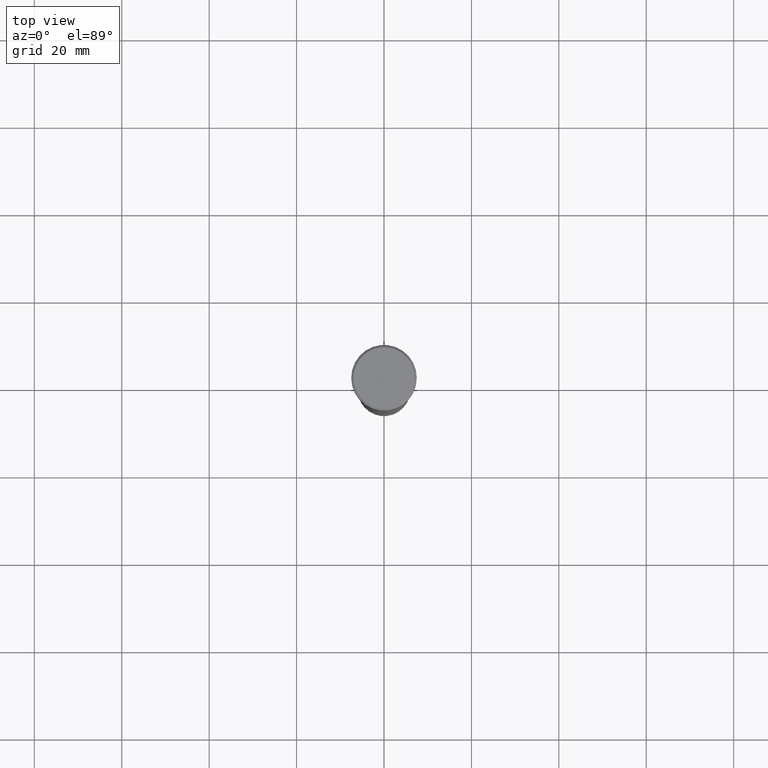
[diagram: clean part render]
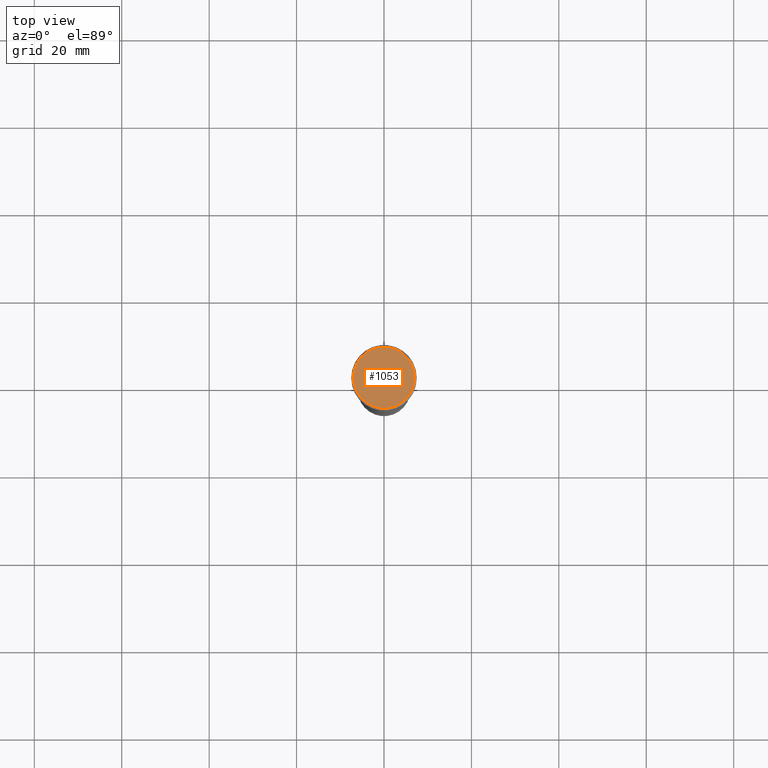
[diagram: same view with one face highlighted and labeled with its STEP entity id]
A machine part, top view. The second image highlights one B-rep face of the part: STEP entity #1053.
In plain terms, the highlighted planar face has unit normal (0, -0, 1).
Its self-contained STEP definition (entity closure, byte-faithful):
#103 = CARTESIAN_POINT ( 'NONE',  ( 0.000000000000000000, 0.000000000000000000, 0.000000000000000000 ) ) ;
#187 = DIRECTION ( 'NONE',  ( 0.000000000000000000, -0.000000000000000000, 1.000000000000000000 ) ) ;
#194 = CIRCLE ( 'NONE', #1124, 7.000000000000005329 ) ;
#264 = CIRCLE ( 'NONE', #532, 7.000000000000005329 ) ;
#459 = CARTESIAN_POINT ( 'NONE',  ( 0.000000000000000000, 0.000000000000000000, 0.000000000000000000 ) ) ;
#460 = DIRECTION ( 'NONE',  ( 1.000000000000000000, 0.000000000000000000, 0.000000000000000000 ) ) ;
#496 = EDGE_LOOP ( 'NONE', ( #979, #1050 ) ) ;
#501 = DIRECTION ( 'NONE',  ( -0.000000000000000000, -0.000000000000000000, 1.000000000000000000 ) ) ;
#502 = AXIS2_PLACEMENT_3D ( 'NONE', #459, #187, #533 ) ;
#510 = VERTEX_POINT ( 'NONE', #517 ) ;
#517 = CARTESIAN_POINT ( 'NONE',  ( 7.000000000000005329, 8.878689293818314018E-16, 0.000000000000000000 ) ) ;
#532 = AXIS2_PLACEMENT_3D ( 'NONE', #770, #501, #661 ) ;
#533 = DIRECTION ( 'NONE',  ( 1.000000000000000000, 0.000000000000000000, 0.000000000000000000 ) ) ;
#661 = DIRECTION ( 'NONE',  ( 1.000000000000000000, 0.000000000000000000, 0.000000000000000000 ) ) ;
#688 = EDGE_CURVE ( 'NONE', #510, #883, #264, .T. ) ;
#770 = CARTESIAN_POINT ( 'NONE',  ( 0.000000000000000000, 0.000000000000000000, 0.000000000000000000 ) ) ;
#785 = FACE_OUTER_BOUND ( 'NONE', #496, .T. ) ;
#883 = VERTEX_POINT ( 'NONE', #1095 ) ;
#934 = EDGE_CURVE ( 'NONE', #883, #510, #194, .T. ) ;
#979 = ORIENTED_EDGE ( 'NONE', *, *, #934, .T. ) ;
#1050 = ORIENTED_EDGE ( 'NONE', *, *, #688, .T. ) ;
#1053 = ADVANCED_FACE ( 'NONE', ( #785 ), #1149, .T. ) ;
#1092 = DIRECTION ( 'NONE',  ( -0.000000000000000000, -0.000000000000000000, 1.000000000000000000 ) ) ;
#1095 = CARTESIAN_POINT ( 'NONE',  ( -7.000000000000005329, 0.000000000000000000, 0.000000000000000000 ) ) ;
#1124 = AXIS2_PLACEMENT_3D ( 'NONE', #103, #1092, #460 ) ;
#1149 = PLANE ( 'NONE',  #502 ) ;